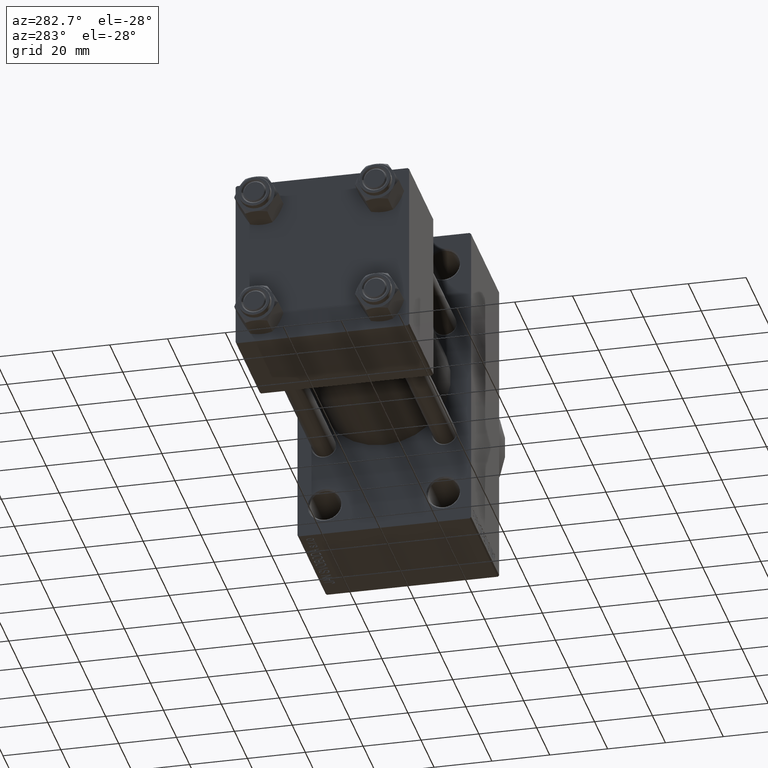
[diagram: clean part render]
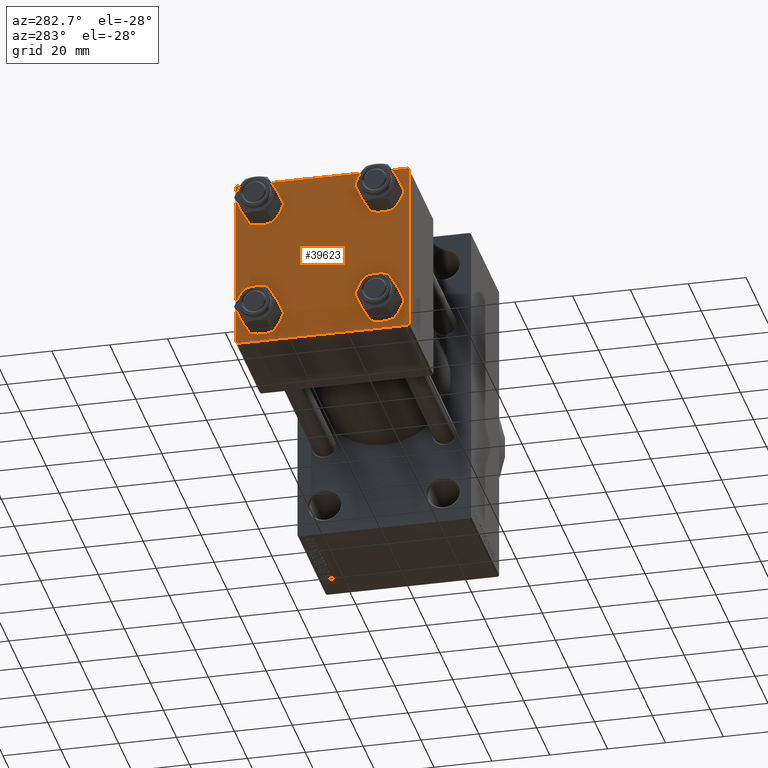
[diagram: same view with one face highlighted and labeled with its STEP entity id]
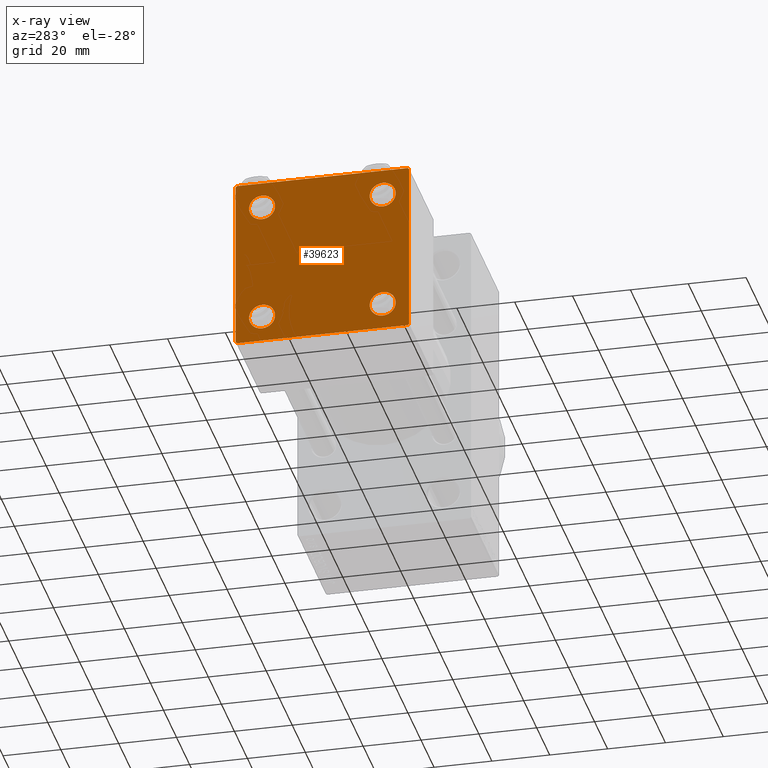
[diagram: x-ray of the same camera — body ghosted, the highlighted face saturated]
A machine part, auxiliary view. The second image highlights one B-rep face of the part: STEP entity #39623.
The next image is the same camera in x-ray: the body ghosted, the highlighted face saturated — about 0% of this face is hidden behind the body in this view.
In plain terms, the highlighted planar face has unit normal (-1, 0, 0).
Its self-contained STEP definition (entity closure, byte-faithful):
#801 = CARTESIAN_POINT ( 'NONE',  ( 0.000000000000000000, -20.84999999999999076, -25.35000000000002274 ) ) ;
#1010 = EDGE_CURVE ( 'NONE', #29460, #37288, #15409, .T. ) ;
#1090 = ORIENTED_EDGE ( 'NONE', *, *, #23261, .T. ) ;
#2032 = DIRECTION ( 'NONE',  ( 0.000000000000000000, 0.000000000000000000, 1.000000000000000000 ) ) ;
#2072 = EDGE_CURVE ( 'NONE', #37288, #29460, #28535, .T. ) ;
#2251 = CARTESIAN_POINT ( 'NONE',  ( 0.000000000000000000, -29.50000000000000000, -30.00000000000000711 ) ) ;
#2752 = EDGE_CURVE ( 'NONE', #26471, #8270, #44122, .T. ) ;
#2869 = DIRECTION ( 'NONE',  ( 0.000000000000000000, -0.7071067811865474617, 0.7071067811865474617 ) ) ;
#3247 = LINE ( 'NONE', #24949, #47295 ) ;
#3524 = ORIENTED_EDGE ( 'NONE', *, *, #2752, .T. ) ;
#3588 = ORIENTED_EDGE ( 'NONE', *, *, #28285, .T. ) ;
#5160 = DIRECTION ( 'NONE',  ( 0.000000000000000000, 0.000000000000000000, 1.000000000000000000 ) ) ;
#5599 = VERTEX_POINT ( 'NONE', #26144 ) ;
#6583 = DIRECTION ( 'NONE',  ( 0.000000000000000000, 0.000000000000000000, 1.000000000000000000 ) ) ;
#6632 = DIRECTION ( 'NONE',  ( 0.000000000000000000, 0.7071067811865474617, -0.7071067811865474617 ) ) ;
#6723 = EDGE_CURVE ( 'NONE', #6892, #10648, #28532, .T. ) ;
#6892 = VERTEX_POINT ( 'NONE', #15716 ) ;
#7060 = CARTESIAN_POINT ( 'NONE',  ( 0.000000000000000000, 29.99999999999999289, 30.00000000000000000 ) ) ;
#7264 = DIRECTION ( 'NONE',  ( -0.000000000000000000, -0.7071067811865574537, -0.7071067811865376918 ) ) ;
#7608 = ORIENTED_EDGE ( 'NONE', *, *, #18519, .T. ) ;
#7700 = AXIS2_PLACEMENT_3D ( 'NONE', #37328, #8130, #45039 ) ;
#8039 = LINE ( 'NONE', #14787, #25427 ) ;
#8130 = DIRECTION ( 'NONE',  ( -1.000000000000000000, 0.000000000000000000, -0.000000000000000000 ) ) ;
#8220 = DIRECTION ( 'NONE',  ( 0.000000000000000000, 0.000000000000000000, -1.000000000000000000 ) ) ;
#8270 = VERTEX_POINT ( 'NONE', #24966 ) ;
#8326 = ORIENTED_EDGE ( 'NONE', *, *, #27621, .T. ) ;
#8937 = EDGE_CURVE ( 'NONE', #31217, #26471, #29624, .T. ) ;
#9629 = AXIS2_PLACEMENT_3D ( 'NONE', #43731, #25144, #6583 ) ;
#9719 = EDGE_LOOP ( 'NONE', ( #33869, #38214 ) ) ;
#10070 = VECTOR ( 'NONE', #2869, 1000.000000000000114 ) ;
#10648 = VERTEX_POINT ( 'NONE', #42706 ) ;
#10666 = DIRECTION ( 'NONE',  ( 0.000000000000000000, 0.000000000000000000, 1.000000000000000000 ) ) ;
#11014 = DIRECTION ( 'NONE',  ( 1.000000000000000000, -0.000000000000000000, 0.000000000000000000 ) ) ;
#11503 = FACE_BOUND ( 'NONE', #24384, .T. ) ;
#11571 = VERTEX_POINT ( 'NONE', #33992 ) ;
#11621 = VERTEX_POINT ( 'NONE', #26036 ) ;
#11744 = FACE_BOUND ( 'NONE', #35381, .T. ) ;
#11938 = CARTESIAN_POINT ( 'NONE',  ( 0.000000000000000000, -20.84999999999999076, 20.85000000000000497 ) ) ;
#12042 = AXIS2_PLACEMENT_3D ( 'NONE', #28982, #43702, #17623 ) ;
#12081 = CARTESIAN_POINT ( 'NONE',  ( 0.000000000000000000, 20.84999999999999787, -20.85000000000000142 ) ) ;
#12637 = DIRECTION ( 'NONE',  ( 1.000000000000000000, -0.000000000000000000, 0.000000000000000000 ) ) ;
#14051 = CARTESIAN_POINT ( 'NONE',  ( 0.000000000000000000, 20.84999999999999787, 16.34999999999998366 ) ) ;
#14065 = EDGE_CURVE ( 'NONE', #6892, #21576, #17710, .T. ) ;
#14787 = CARTESIAN_POINT ( 'NONE',  ( 0.000000000000000000, 29.99999999999999289, 30.00000000000000000 ) ) ;
#15124 = FACE_BOUND ( 'NONE', #9719, .T. ) ;
#15305 = EDGE_CURVE ( 'NONE', #45045, #42978, #28116, .T. ) ;
#15409 = CIRCLE ( 'NONE', #23115, 4.500000000000017764 ) ;
#15716 = CARTESIAN_POINT ( 'NONE',  ( 0.000000000000000000, 29.49999999999999289, 30.00000000000000000 ) ) ;
#16698 = CARTESIAN_POINT ( 'NONE',  ( 0.000000000000000000, -20.84999999999999076, -16.34999999999998721 ) ) ;
#17333 = ORIENTED_EDGE ( 'NONE', *, *, #1010, .T. ) ;
#17516 = DIRECTION ( 'NONE',  ( 0.000000000000000000, 0.000000000000000000, 1.000000000000000000 ) ) ;
#17623 = DIRECTION ( 'NONE',  ( 0.000000000000000000, 0.000000000000000000, 1.000000000000000000 ) ) ;
#17710 = LINE ( 'NONE', #47644, #20318 ) ;
#17774 = VECTOR ( 'NONE', #32640, 1000.000000000000000 ) ;
#18519 = EDGE_CURVE ( 'NONE', #5599, #20399, #39503, .T. ) ;
#18680 = ORIENTED_EDGE ( 'NONE', *, *, #2072, .T. ) ;
#18850 = CARTESIAN_POINT ( 'NONE',  ( 0.000000000000000000, 20.84999999999999787, -20.85000000000000142 ) ) ;
#20318 = VECTOR ( 'NONE', #6632, 1000.000000000000114 ) ;
#20350 = CARTESIAN_POINT ( 'NONE',  ( 0.000000000000000000, 20.84999999999999787, 20.85000000000000142 ) ) ;
#20399 = VERTEX_POINT ( 'NONE', #45307 ) ;
#20608 = ORIENTED_EDGE ( 'NONE', *, *, #43297, .F. ) ;
#20609 = DIRECTION ( 'NONE',  ( 0.000000000000000000, 0.000000000000000000, 1.000000000000000000 ) ) ;
#20843 = EDGE_CURVE ( 'NONE', #45965, #10648, #3247, .T. ) ;
#21248 = CIRCLE ( 'NONE', #12042, 4.500000000000017764 ) ;
#21551 = CIRCLE ( 'NONE', #40834, 4.500000000000017764 ) ;
#21576 = VERTEX_POINT ( 'NONE', #41766 ) ;
#21959 = LINE ( 'NONE', #47074, #26549 ) ;
#22628 = CARTESIAN_POINT ( 'NONE',  ( 0.000000000000000000, -30.00000000000000000, 29.49999999999999289 ) ) ;
#23115 = AXIS2_PLACEMENT_3D ( 'NONE', #38253, #31492, #20609 ) ;
#23242 = VECTOR ( 'NONE', #39524, 1000.000000000000000 ) ;
#23261 = EDGE_CURVE ( 'NONE', #11571, #31217, #21959, .T. ) ;
#23404 = DIRECTION ( 'NONE',  ( 1.000000000000000000, -0.000000000000000000, 0.000000000000000000 ) ) ;
#23602 = AXIS2_PLACEMENT_3D ( 'NONE', #28873, #11014, #17516 ) ;
#23868 = CARTESIAN_POINT ( 'NONE',  ( 0.000000000000000000, -30.00000000000000000, 29.99999999999999289 ) ) ;
#24384 = EDGE_LOOP ( 'NONE', ( #7608, #3588 ) ) ;
#24790 = CARTESIAN_POINT ( 'NONE',  ( 0.000000000000000000, 29.99999999999999289, -30.00000000000000000 ) ) ;
#24949 = CARTESIAN_POINT ( 'NONE',  ( -0.000000000000000000, -29.74999999999999645, 29.74999999999999645 ) ) ;
#24966 = CARTESIAN_POINT ( 'NONE',  ( 0.000000000000000000, -30.00000000000000000, -29.50000000000001776 ) ) ;
#25144 = DIRECTION ( 'NONE',  ( 1.000000000000000000, -0.000000000000000000, 0.000000000000000000 ) ) ;
#25427 = VECTOR ( 'NONE', #32901, 1000.000000000000000 ) ;
#25669 = DIRECTION ( 'NONE',  ( -0.000000000000000000, 0.7071067811865474617, 0.7071067811865474617 ) ) ;
#25842 = CARTESIAN_POINT ( 'NONE',  ( 0.000000000000000000, 20.84999999999999787, -16.34999999999998366 ) ) ;
#25857 = DIRECTION ( 'NONE',  ( 1.000000000000000000, -0.000000000000000000, 0.000000000000000000 ) ) ;
#26036 = CARTESIAN_POINT ( 'NONE',  ( 0.000000000000000000, 20.84999999999999787, -25.35000000000001918 ) ) ;
#26144 = CARTESIAN_POINT ( 'NONE',  ( 0.000000000000000000, -20.84999999999999076, 25.35000000000002274 ) ) ;
#26471 = VERTEX_POINT ( 'NONE', #2251 ) ;
#26549 = VECTOR ( 'NONE', #7264, 999.9999999999998863 ) ;
#26642 = ORIENTED_EDGE ( 'NONE', *, *, #8937, .T. ) ;
#26677 = ORIENTED_EDGE ( 'NONE', *, *, #14065, .T. ) ;
#27437 = CIRCLE ( 'NONE', #23602, 4.500000000000017764 ) ;
#27621 = EDGE_CURVE ( 'NONE', #42978, #45045, #21248, .T. ) ;
#28116 = CIRCLE ( 'NONE', #9629, 4.500000000000017764 ) ;
#28285 = EDGE_CURVE ( 'NONE', #20399, #5599, #27437, .T. ) ;
#28532 = LINE ( 'NONE', #7060, #17774 ) ;
#28535 = CIRCLE ( 'NONE', #37048, 4.500000000000017764 ) ;
#28611 = ORIENTED_EDGE ( 'NONE', *, *, #15305, .T. ) ;
#28873 = CARTESIAN_POINT ( 'NONE',  ( 0.000000000000000000, -20.84999999999999076, 20.85000000000000497 ) ) ;
#28982 = CARTESIAN_POINT ( 'NONE',  ( 0.000000000000000000, -20.84999999999999076, -20.85000000000000497 ) ) ;
#29460 = VERTEX_POINT ( 'NONE', #30276 ) ;
#29624 = LINE ( 'NONE', #24790, #23242 ) ;
#29851 = FACE_OUTER_BOUND ( 'NONE', #45457, .T. ) ;
#30080 = FACE_BOUND ( 'NONE', #44751, .T. ) ;
#30161 = CIRCLE ( 'NONE', #38619, 4.500000000000017764 ) ;
#30276 = CARTESIAN_POINT ( 'NONE',  ( 0.000000000000000000, 20.84999999999999787, 25.35000000000001918 ) ) ;
#30940 = ORIENTED_EDGE ( 'NONE', *, *, #6723, .F. ) ;
#31217 = VERTEX_POINT ( 'NONE', #43637 ) ;
#31492 = DIRECTION ( 'NONE',  ( 1.000000000000000000, -0.000000000000000000, 0.000000000000000000 ) ) ;
#32640 = DIRECTION ( 'NONE',  ( 0.000000000000000000, -1.000000000000000000, -1.156482317317871725E-16 ) ) ;
#32901 = DIRECTION ( 'NONE',  ( 0.000000000000000000, 0.000000000000000000, -1.000000000000000000 ) ) ;
#33869 = ORIENTED_EDGE ( 'NONE', *, *, #45784, .T. ) ;
#33992 = CARTESIAN_POINT ( 'NONE',  ( 0.000000000000000000, 29.99999999999999289, -29.50000000000000000 ) ) ;
#34504 = DIRECTION ( 'NONE',  ( 0.000000000000000000, 0.000000000000000000, 1.000000000000000000 ) ) ;
#35381 = EDGE_LOOP ( 'NONE', ( #28611, #8326 ) ) ;
#37048 = AXIS2_PLACEMENT_3D ( 'NONE', #20350, #38941, #2032 ) ;
#37288 = VERTEX_POINT ( 'NONE', #14051 ) ;
#37328 = CARTESIAN_POINT ( 'NONE',  ( 0.000000000000000000, 0.000000000000000000, 0.000000000000000000 ) ) ;
#38214 = ORIENTED_EDGE ( 'NONE', *, *, #39097, .T. ) ;
#38253 = CARTESIAN_POINT ( 'NONE',  ( 0.000000000000000000, 20.84999999999999787, 20.85000000000000142 ) ) ;
#38619 = AXIS2_PLACEMENT_3D ( 'NONE', #18850, #25857, #10666 ) ;
#38941 = DIRECTION ( 'NONE',  ( 1.000000000000000000, -0.000000000000000000, 0.000000000000000000 ) ) ;
#39097 = EDGE_CURVE ( 'NONE', #11621, #44293, #21551, .T. ) ;
#39503 = CIRCLE ( 'NONE', #44922, 4.500000000000017764 ) ;
#39524 = DIRECTION ( 'NONE',  ( 0.000000000000000000, -1.000000000000000000, -1.156482317317871725E-16 ) ) ;
#39623 = ADVANCED_FACE ( 'NONE', ( #11503, #11744, #15124, #30080, #29851 ), #41180, .T. ) ;
#40834 = AXIS2_PLACEMENT_3D ( 'NONE', #12081, #23404, #34504 ) ;
#40939 = VECTOR ( 'NONE', #8220, 1000.000000000000000 ) ;
#41019 = EDGE_CURVE ( 'NONE', #21576, #11571, #8039, .T. ) ;
#41180 = PLANE ( 'NONE',  #7700 ) ;
#41766 = CARTESIAN_POINT ( 'NONE',  ( 0.000000000000000000, 29.99999999999999289, 29.50000000000000000 ) ) ;
#42706 = CARTESIAN_POINT ( 'NONE',  ( 0.000000000000000000, -29.49999999999998579, 29.99999999999999289 ) ) ;
#42978 = VERTEX_POINT ( 'NONE', #801 ) ;
#43093 = ORIENTED_EDGE ( 'NONE', *, *, #20843, .T. ) ;
#43297 = EDGE_CURVE ( 'NONE', #45965, #8270, #45363, .T. ) ;
#43402 = CARTESIAN_POINT ( 'NONE',  ( 0.000000000000000000, -29.75000000000001066, -29.75000000000001066 ) ) ;
#43637 = CARTESIAN_POINT ( 'NONE',  ( 0.000000000000000000, 29.49999999999997868, -30.00000000000000000 ) ) ;
#43702 = DIRECTION ( 'NONE',  ( 1.000000000000000000, -0.000000000000000000, 0.000000000000000000 ) ) ;
#43731 = CARTESIAN_POINT ( 'NONE',  ( 0.000000000000000000, -20.84999999999999076, -20.85000000000000497 ) ) ;
#44122 = LINE ( 'NONE', #43402, #10070 ) ;
#44293 = VERTEX_POINT ( 'NONE', #25842 ) ;
#44751 = EDGE_LOOP ( 'NONE', ( #17333, #18680 ) ) ;
#44922 = AXIS2_PLACEMENT_3D ( 'NONE', #11938, #12637, #5160 ) ;
#44992 = ORIENTED_EDGE ( 'NONE', *, *, #41019, .T. ) ;
#45039 = DIRECTION ( 'NONE',  ( -0.000000000000000000, 0.000000000000000000, 1.000000000000000000 ) ) ;
#45045 = VERTEX_POINT ( 'NONE', #16698 ) ;
#45307 = CARTESIAN_POINT ( 'NONE',  ( 0.000000000000000000, -20.84999999999999076, 16.34999999999998721 ) ) ;
#45363 = LINE ( 'NONE', #23868, #40939 ) ;
#45457 = EDGE_LOOP ( 'NONE', ( #44992, #1090, #26642, #3524, #20608, #43093, #30940, #26677 ) ) ;
#45784 = EDGE_CURVE ( 'NONE', #44293, #11621, #30161, .T. ) ;
#45965 = VERTEX_POINT ( 'NONE', #22628 ) ;
#47074 = CARTESIAN_POINT ( 'NONE',  ( 0.000000000000000000, 29.74999999999957723, -29.75000000000040501 ) ) ;
#47295 = VECTOR ( 'NONE', #25669, 1000.000000000000114 ) ;
#47644 = CARTESIAN_POINT ( 'NONE',  ( 0.000000000000000000, 29.74999999999999645, 29.74999999999999645 ) ) ;